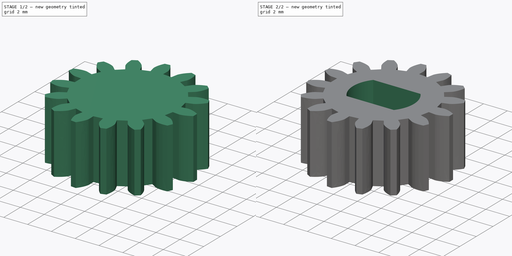
[diagram: build sequence overview — one tinted view per stage of 2, left to right]
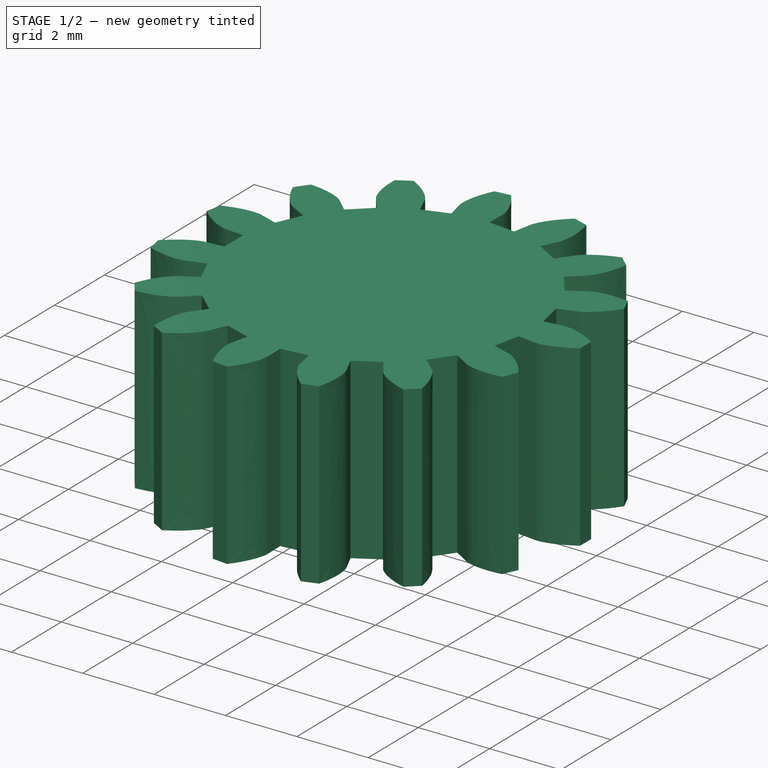
[diagram: stage 1 of 2 — iso view after this stage's code; geometry added in this stage tinted green]
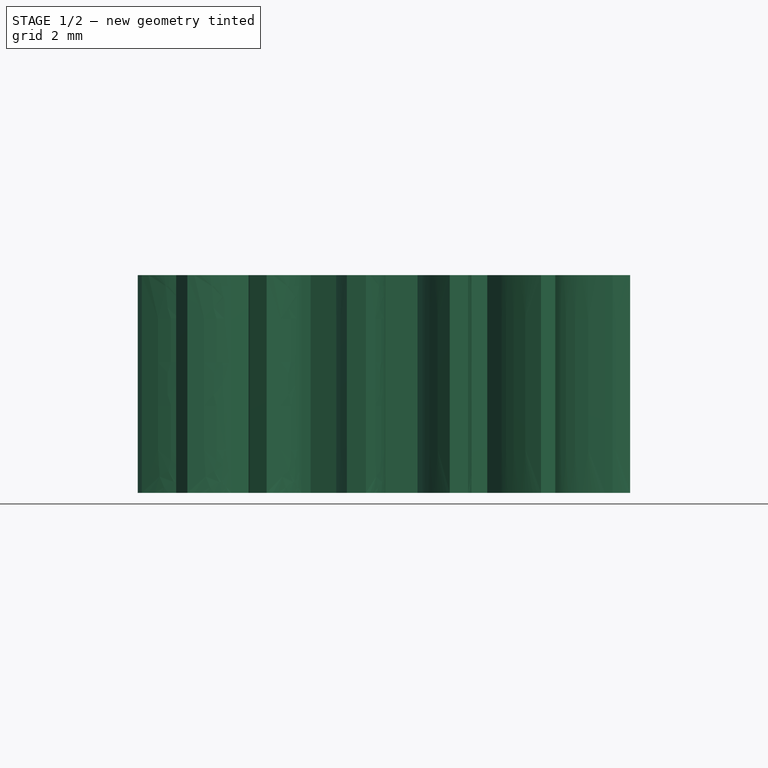
[diagram: stage 1 of 2 — front view after this stage's code; geometry added in this stage tinted green]
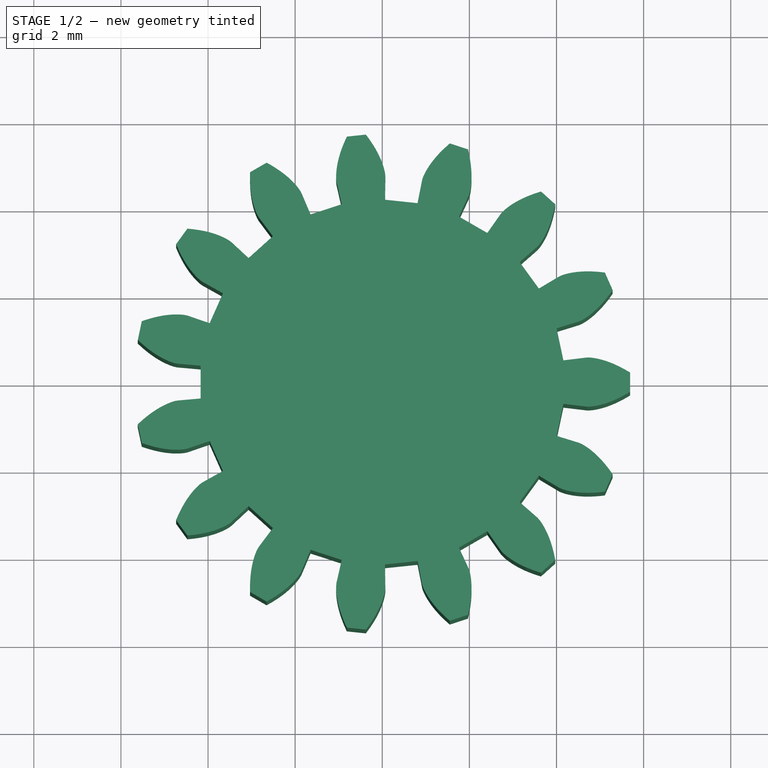
[diagram: stage 1 of 2 — top view after this stage's code; geometry added in this stage tinted green]
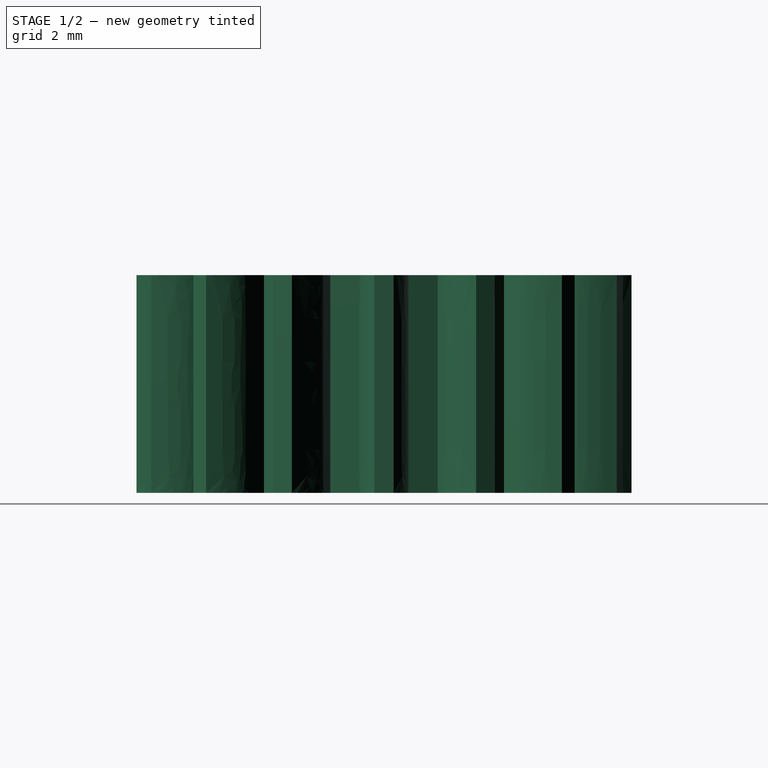
[diagram: stage 1 of 2 — right view after this stage's code; geometry added in this stage tinted green]
FCSTD DOCUMENT  (FreeCAD 0.20R29177 (Git))
Label: sun_gear
License: All rights reserved
LicenseURL: http://en.wikipedia.org/wiki/All_rights_reserved
objects: Part::FeaturePython×1, PartDesign::FeatureBase×1, Sketcher::SketchObject×1, PartDesign::Pocket×1, PartDesign::Body×1
note: 6 computed .brp shape members not serialized (recipe doc carries the construction recipe); baked Part::Feature solids carry a one-line shape summary decoded from their .brp

FEATURE [Part::FeaturePython] InvoluteGear  # WARN: FeaturePython — macro-defined, semantics opaque (R4)
  AttacherType = Attacher::AttachEngine3D
  angular_backlash = 0
  backlash = 0
  beta = 0
  clearance = 0.25
  da = 11.39
  df = 8.375
  double_helix = true
  dw = 10.05
  head = 0
  head_fillet = 0
  height = 5
  module = 0.67
  numpoints = 6
  pressure_angle = 20
  properties_from_tool = false
  reversed_backlash = false
  root_fillet = 0
  shift = 0
  simple = false
  teeth = 15
  transverse_pitch = 2.10487
  undercut = false
  version = 0.0.4
  expr: angular_backlash = backlash / dw * 360° / pi
  expr: dw = teeth * module
FEATURE [PartDesign::FeatureBase] BaseFeature
  BaseFeature = -> InvoluteGear
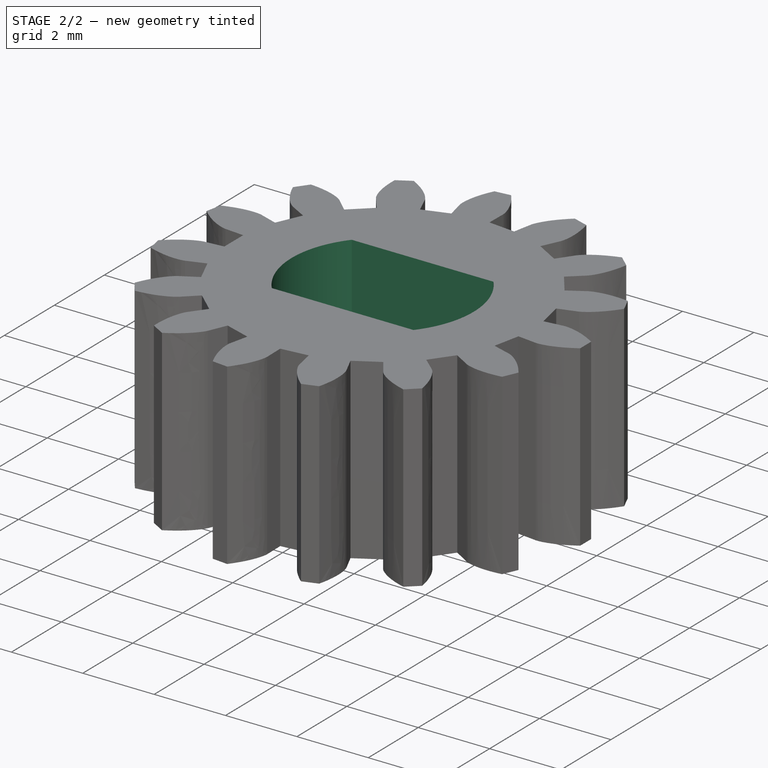
[diagram: stage 2 of 2 — iso view after this stage's code; geometry added in this stage tinted green]
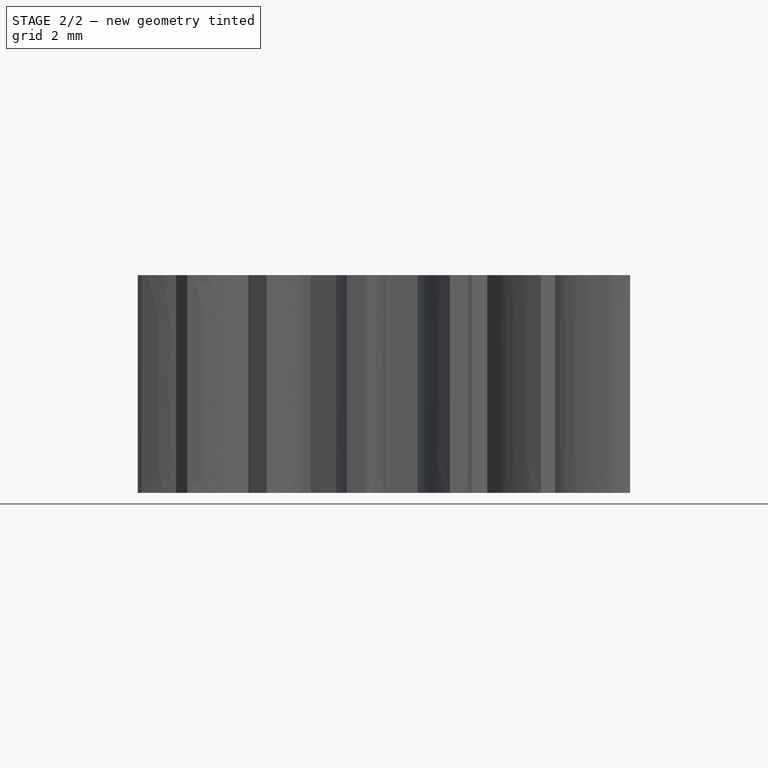
[diagram: stage 2 of 2 — front view after this stage's code; geometry added in this stage tinted green]
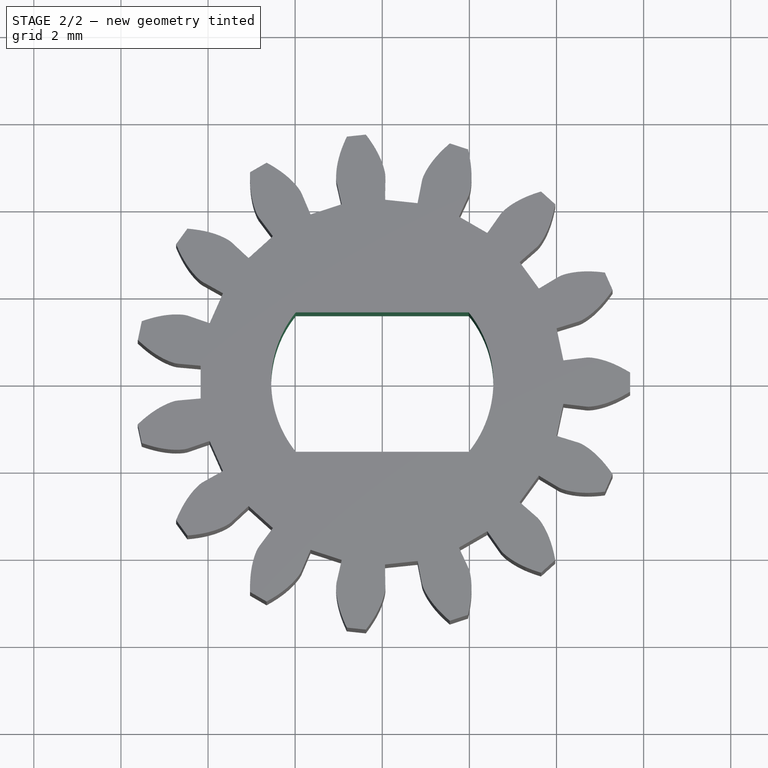
[diagram: stage 2 of 2 — top view after this stage's code; geometry added in this stage tinted green]
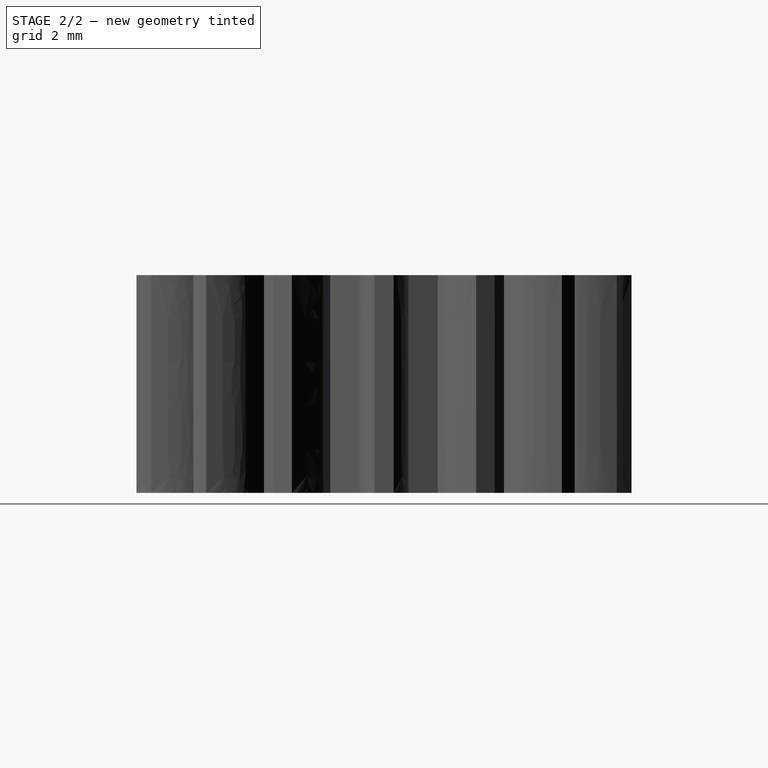
[diagram: stage 2 of 2 — right view after this stage's code; geometry added in this stage tinted green]
FEATURE [Sketcher::SketchObject] Sketch
  FullyConstrained = true
  MapMode = 5
  Support = -> [XY_Plane]
  sketch-geometry (4):
    g0: ArcOfCircle CenterX=0 CenterY=0 CenterZ=0 NormalX=0 NormalY=0 NormalZ=1 AngleXU=0 Radius=2.55 StartAngle=2.46332 EndAngle=3.81987
    g1: LineSegment StartX=-1.98557 StartY=1.6 StartZ=0 EndX=1.98557 EndY=1.6 EndZ=0
    g2: LineSegment StartX=-1.98557 StartY=-1.6 StartZ=0 EndX=1.98557 EndY=-1.6 EndZ=0
    g3: ArcOfCircle CenterX=0 CenterY=0 CenterZ=0 NormalX=0 NormalY=0 NormalZ=1 AngleXU=0 Radius=2.55 StartAngle=5.60491 EndAngle=6.96146
  constraints (12):
    c: Coincident(g0,g-1)
    c: Horizontal(g1)
    c: Horizontal(g2)
    c: Equal(g1,g2)
    c: Coincident(g3,g1)
    c: Coincident(g0,g1)
    c: Equal(g0,g3)
    c: Coincident(g0,g2)
    c: Coincident(g3,g2)
    c: Coincident(g0,g3)
    c: Radius(g3) = 2.55
    c: Distance(g1,g2) = 3.2
FEATURE [PartDesign::Pocket] Pocket
  BaseFeature = -> BaseFeature
  Direction = (0,0,-1)
  Length = 5
  Length2 = 5
  Profile = -> Sketch
  ReferenceAxis = -> Sketch [N_Axis]
  Reversed = true
  Type = 1
FEATURE [PartDesign::Body] Body
  BaseFeature = -> InvoluteGear
  Group = -> [BaseFeature,Sketch,Pocket]
  Origin = -> Origin
  Tip = -> Pocket
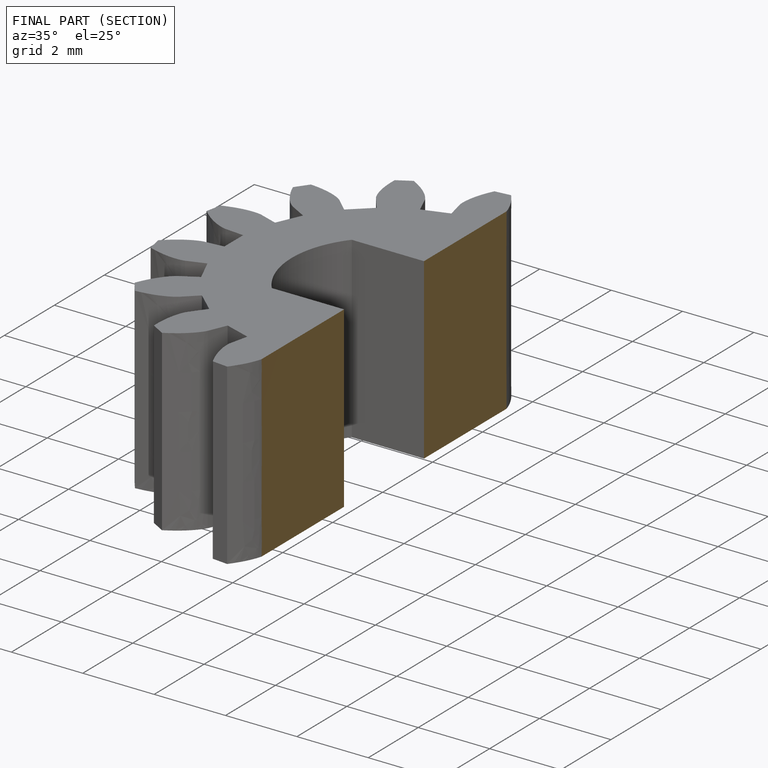
[diagram: finished part — half-section view (interior)]
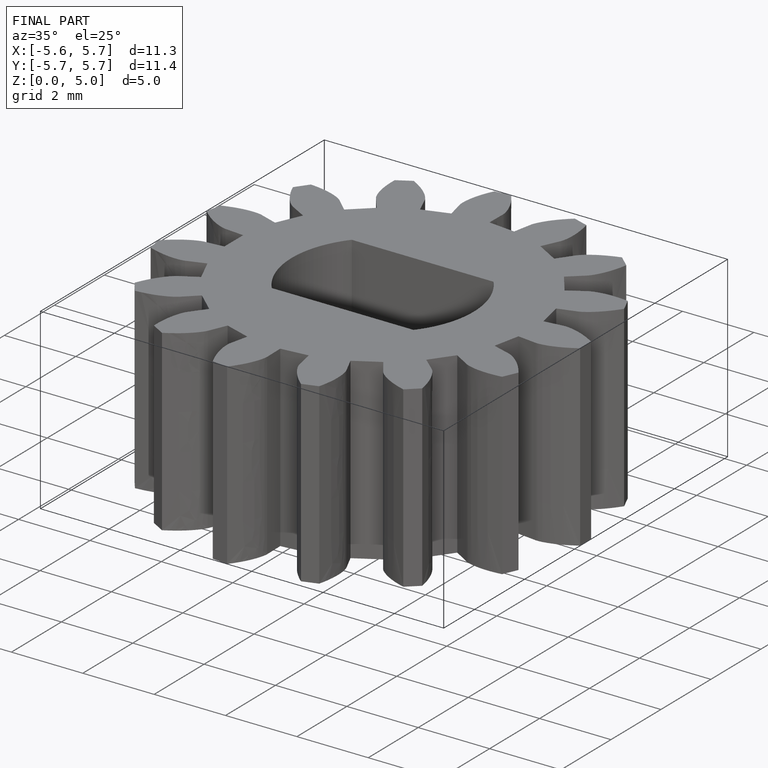
[diagram: finished part — iso view with bounding-box wireframe]
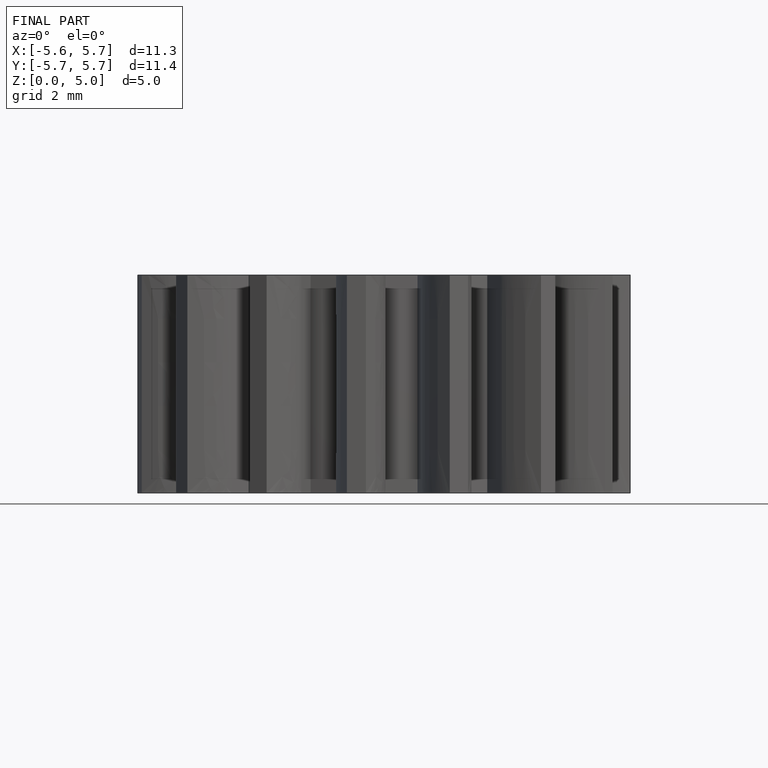
[diagram: finished part — front view with bounding-box wireframe]
